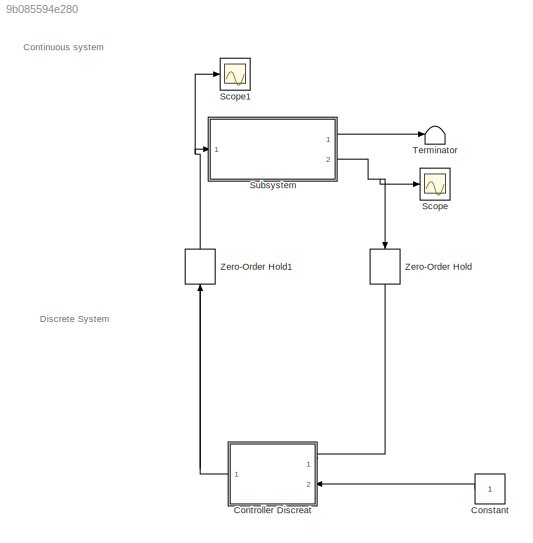
MODEL slx_9b085594e280
KIND model
CONFIG AbsTol = auto
CONFIG EnableMultiTasking = off
CONFIG FixedStep = auto
CONFIG MaxStep = auto
CONFIG MinStep = auto
CONFIG RelTol = 1e-3
CONFIG SampleTimeConstraint = Unconstrained
CONFIG SolverName = VariableStepAuto
CONFIG StartTime = 0.0
CONFIG StopTime = 10.0
BLOCK [Constant] Constant
  NameLocation = top
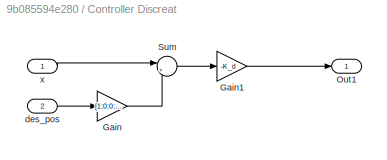
BLOCK [SubSystem] Controller Discreat
  Ports = [2, 1]
  RequestExecContextInheritance = off
BLOCK [Gain] Controller Discreat/Gain
  Gain = [1;0;0;0]
BLOCK [Gain] Controller Discreat/Gain1
  Gain = -K_d
  Multiplication = Matrix(K*u) (u vector)
BLOCK [Outport] Controller Discreat/Out1
BLOCK [Sum] Controller Discreat/Sum
  Inputs = |+-
  Ports = [2, 1]
BLOCK [Inport] Controller Discreat/des_pos
  Port = 2
BLOCK [Inport] Controller Discreat/x
BLOCK [Scope] Scope
  Floating = off
  NumInputPorts = 1
  Ports = [1]
  ScopeSpecificationString = Simulink.scopes.TimeScopeBlockCfg('CurrentConfiguration', extmgr.ConfigurationSet(extmgr.Configuration('Core','General UI',true),extmgr.Configuration('Core','Source UI',true),extmgr.Configuration('Sources','WiredSimulink',true),extmgr.Configuration('Visuals','Time Domain',true,'SerializedDisplays',{struct('MinYLimReal','-35.05822','MaxYLimReal','30.56497','YLabelReal','','MinYLimMag','0.00000','Ma...<+1513ch>
BLOCK [Scope] Scope1
  Floating = off
  NumInputPorts = 1
  Ports = [1]
  ScopeSpecificationString = Simulink.scopes.TimeScopeBlockCfg('CurrentConfiguration', extmgr.ConfigurationSet(extmgr.Configuration('Core','General UI',true),extmgr.Configuration('Core','Source UI',true),extmgr.Configuration('Sources','WiredSimulink',true,'DataLoggingVariableName','ScopeData1'),extmgr.Configuration('Visuals','Time Domain',true,'SerializedDisplays',{struct('MinYLimReal','-572.20239','MaxYLimReal','943.12555','...<+1425ch>
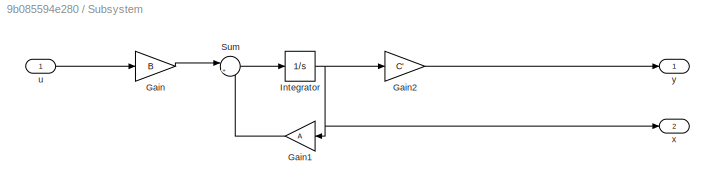
BLOCK [SubSystem] Subsystem
  Ports = [1, 2]
  RequestExecContextInheritance = off
BLOCK [Gain] Subsystem/Gain
  Gain = B
  Multiplication = Matrix(K*u)
BLOCK [Gain] Subsystem/Gain1
  Gain = A
  Multiplication = Matrix(K*u) (u vector)
  NameLocation = top
BLOCK [Gain] Subsystem/Gain2
  Gain = C'
  Multiplication = Matrix(u*K)
BLOCK [Integrator] Subsystem/Integrator
  InitialCondition = x0
  Ports = [1, 1]
BLOCK [Sum] Subsystem/Sum
  Inputs = |++
  Ports = [2, 1]
BLOCK [Inport] Subsystem/u
BLOCK [Outport] Subsystem/x
  Port = 2
BLOCK [Outport] Subsystem/y
BLOCK [Terminator] Terminator
BLOCK [ZeroOrderHold] Zero-Order Hold
  NameLocation = left
  SampleTime = Ts
BLOCK [ZeroOrderHold] Zero-Order Hold1
  NameLocation = left
  SampleTime = Ts
ANNOTATION (root): Continuous system
ANNOTATION (root): Discrete System
LINE Constant:1 -> Controller Discreat:2
LINE Controller Discreat/Gain1:1 -> Controller Discreat/Out1:1
LINE Controller Discreat/Gain:1 -> Controller Discreat/Sum:2
LINE Controller Discreat/Sum:1 -> Controller Discreat/Gain1:1
LINE Controller Discreat/des_pos:1 -> Controller Discreat/Gain:1
LINE Controller Discreat/x:1 -> Controller Discreat/Sum:1
LINE Controller Discreat:1 -> Zero-Order Hold1:1
LINE Subsystem/Gain1:1 -> Subsystem/Sum:2
LINE Subsystem/Gain2:1 -> Subsystem/y:1
LINE Subsystem/Gain:1 -> Subsystem/Sum:1
NET Subsystem/Integrator:1 -> Subsystem/Gain1:1, Subsystem/Gain2:1, Subsystem/x:1
LINE Subsystem/Sum:1 -> Subsystem/Integrator:1
LINE Subsystem/u:1 -> Subsystem/Gain:1
LINE Subsystem:1 -> Terminator:1
NET Subsystem:2 -> Scope:1, Zero-Order Hold:1
NET Zero-Order Hold1:1 -> Scope1:1, Subsystem:1
LINE Zero-Order Hold:1 -> Controller Discreat:1
note: NET lines group one-source signal fan-out (src -> all destinations, sorted); 1:1 wires keep LINE
